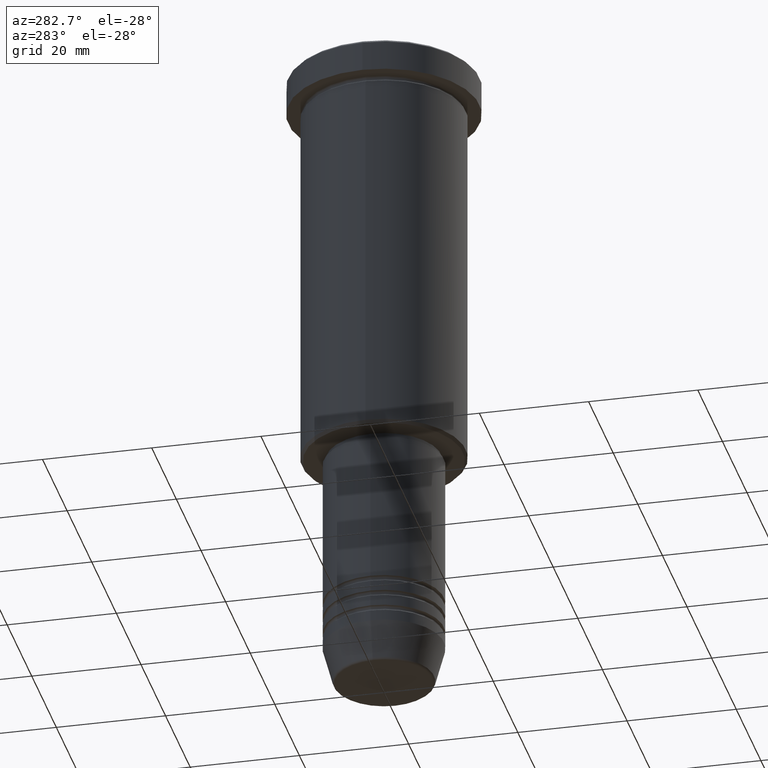
[diagram: clean part render]
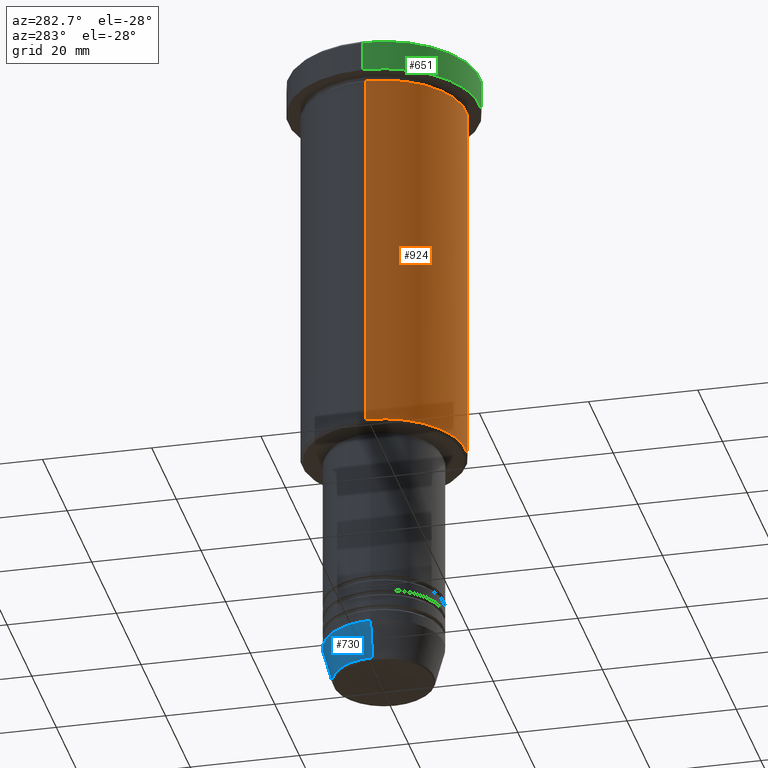
[diagram: same view with three faces highlighted in distinct colors, each labeled with its STEP entity id]
A machine part, auxiliary view with three faces highlighted in distinct colors.
Their STEP definitions:

[orange] entity #924 — the highlighted cylindrical surface (partial cylindrical patch) has radius 15 mm, axis along (-0, -0, 1).
#26 = DIRECTION ( 'NONE',  ( 1.000000000000000000, 0.000000000000000000, 0.000000000000000000 ) ) ;
#30 = EDGE_LOOP ( 'NONE', ( #235, #862, #756, #600 ) ) ;
#87 = LINE ( 'NONE', #244, #726 ) ;
#121 = FACE_OUTER_BOUND ( 'NONE', #30, .T. ) ;
#131 = CARTESIAN_POINT ( 'NONE',  ( 0.000000000000000000, 0.000000000000000000, 0.000000000000000000 ) ) ;
#159 = DIRECTION ( 'NONE',  ( 1.000000000000000000, 0.000000000000000000, 0.000000000000000000 ) ) ;
#175 = EDGE_CURVE ( 'NONE', #380, #1034, #87, .T. ) ;
#207 = CARTESIAN_POINT ( 'NONE',  ( -15.00000000000000000, 1.836970198721029589E-15, -75.49999999999997158 ) ) ;
#235 = ORIENTED_EDGE ( 'NONE', *, *, #175, .F. ) ;
#244 = CARTESIAN_POINT ( 'NONE',  ( -15.00000000000000000, 1.836970198721029589E-15, 0.000000000000000000 ) ) ;
#317 = DIRECTION ( 'NONE',  ( -0.000000000000000000, -0.000000000000000000, 1.000000000000000000 ) ) ;
#327 = CARTESIAN_POINT ( 'NONE',  ( 15.00000000000000000, 0.000000000000000000, 0.000000000000000000 ) ) ;
#337 = CARTESIAN_POINT ( 'NONE',  ( -15.00000000000000000, 1.836970198721029589E-15, -6.999999999999995559 ) ) ;
#341 = AXIS2_PLACEMENT_3D ( 'NONE', #644, #1128, #159 ) ;
#380 = VERTEX_POINT ( 'NONE', #207 ) ;
#420 = EDGE_CURVE ( 'NONE', #380, #1112, #786, .T. ) ;
#481 = CARTESIAN_POINT ( 'NONE',  ( 15.00000000000000000, 0.000000000000000000, -6.999999999999995559 ) ) ;
#504 = EDGE_CURVE ( 'NONE', #1112, #686, #774, .T. ) ;
#533 = AXIS2_PLACEMENT_3D ( 'NONE', #131, #575, #26 ) ;
#564 = CYLINDRICAL_SURFACE ( 'NONE', #533, 15.00000000000000000 ) ;
#575 = DIRECTION ( 'NONE',  ( -0.000000000000000000, -0.000000000000000000, 1.000000000000000000 ) ) ;
#600 = ORIENTED_EDGE ( 'NONE', *, *, #851, .F. ) ;
#620 = CIRCLE ( 'NONE', #341, 15.00000000000000000 ) ;
#644 = CARTESIAN_POINT ( 'NONE',  ( 0.000000000000000000, 0.000000000000000000, -6.999999999999995559 ) ) ;
#686 = VERTEX_POINT ( 'NONE', #481 ) ;
#726 = VECTOR ( 'NONE', #953, 1000.000000000000000 ) ;
#756 = ORIENTED_EDGE ( 'NONE', *, *, #504, .T. ) ;
#762 = AXIS2_PLACEMENT_3D ( 'NONE', #958, #982, #885 ) ;
#774 = LINE ( 'NONE', #327, #952 ) ;
#786 = CIRCLE ( 'NONE', #762, 15.00000000000000000 ) ;
#816 = CARTESIAN_POINT ( 'NONE',  ( 15.00000000000000000, 0.000000000000000000, -75.49999999999997158 ) ) ;
#851 = EDGE_CURVE ( 'NONE', #1034, #686, #620, .T. ) ;
#862 = ORIENTED_EDGE ( 'NONE', *, *, #420, .T. ) ;
#885 = DIRECTION ( 'NONE',  ( -1.000000000000000000, 0.000000000000000000, 0.000000000000000000 ) ) ;
#924 = ADVANCED_FACE ( 'NONE', ( #121 ), #564, .T. ) ;
#952 = VECTOR ( 'NONE', #317, 1000.000000000000000 ) ;
#953 = DIRECTION ( 'NONE',  ( -0.000000000000000000, -0.000000000000000000, 1.000000000000000000 ) ) ;
#958 = CARTESIAN_POINT ( 'NONE',  ( 0.000000000000000000, 0.000000000000000000, -75.49999999999997158 ) ) ;
#982 = DIRECTION ( 'NONE',  ( -0.000000000000000000, -0.000000000000000000, 1.000000000000000000 ) ) ;
#1034 = VERTEX_POINT ( 'NONE', #337 ) ;
#1112 = VERTEX_POINT ( 'NONE', #816 ) ;
#1128 = DIRECTION ( 'NONE',  ( -0.000000000000000000, -0.000000000000000000, 1.000000000000000000 ) ) ;

[blue] entity #730 — the highlighted conical surface has half-angle 15 deg.
#49 = DIRECTION ( 'NONE',  ( 1.000000000000000000, 0.000000000000000000, 0.000000000000000000 ) ) ;
#77 = VECTOR ( 'NONE', #933, 1000.000000000000000 ) ;
#140 = DIRECTION ( 'NONE',  ( -0.000000000000000000, -0.000000000000000000, 1.000000000000000000 ) ) ;
#167 = ORIENTED_EDGE ( 'NONE', *, *, #737, .F. ) ;
#202 = FACE_OUTER_BOUND ( 'NONE', #778, .T. ) ;
#206 = ORIENTED_EDGE ( 'NONE', *, *, #344, .F. ) ;
#224 = VERTEX_POINT ( 'NONE', #902 ) ;
#279 = CARTESIAN_POINT ( 'NONE',  ( 11.00000000000000000, 0.000000000000000000, -113.9999999999999858 ) ) ;
#344 = EDGE_CURVE ( 'NONE', #1160, #847, #447, .T. ) ;
#408 = CARTESIAN_POINT ( 'NONE',  ( -11.00000000000000000, 1.347111479062088405E-15, -113.9999999999999858 ) ) ;
#435 = CARTESIAN_POINT ( 'NONE',  ( -9.223655072137191269, 1.238341722557647202E-15, -120.6294095225512280 ) ) ;
#447 = CIRCLE ( 'NONE', #1142, 11.00000000000000000 ) ;
#470 = DIRECTION ( 'NONE',  ( 0.2588190451025213501, 0.000000000000000000, 0.9659258262890680902 ) ) ;
#490 = CARTESIAN_POINT ( 'NONE',  ( 0.000000000000000000, 0.000000000000000000, -120.6294095225512280 ) ) ;
#514 = CIRCLE ( 'NONE', #731, 9.223655072137191269 ) ;
#552 = VECTOR ( 'NONE', #470, 1000.000000000000000 ) ;
#555 = CARTESIAN_POINT ( 'NONE',  ( 11.00000000000000000, 0.000000000000000000, -113.9999999999999858 ) ) ;
#634 = EDGE_CURVE ( 'NONE', #1154, #847, #690, .T. ) ;
#643 = ORIENTED_EDGE ( 'NONE', *, *, #634, .T. ) ;
#690 = LINE ( 'NONE', #408, #77 ) ;
#730 = ADVANCED_FACE ( 'NONE', ( #202 ), #1145, .T. ) ;
#731 = AXIS2_PLACEMENT_3D ( 'NONE', #490, #140, #49 ) ;
#737 = EDGE_CURVE ( 'NONE', #224, #1160, #1007, .T. ) ;
#748 = CARTESIAN_POINT ( 'NONE',  ( 0.000000000000000000, 0.000000000000000000, -113.9999999999999858 ) ) ;
#778 = EDGE_LOOP ( 'NONE', ( #1172, #643, #206, #167 ) ) ;
#808 = DIRECTION ( 'NONE',  ( -0.000000000000000000, -0.000000000000000000, 1.000000000000000000 ) ) ;
#828 = DIRECTION ( 'NONE',  ( 1.000000000000000000, 0.000000000000000000, 0.000000000000000000 ) ) ;
#847 = VERTEX_POINT ( 'NONE', #1093 ) ;
#878 = AXIS2_PLACEMENT_3D ( 'NONE', #748, #1107, #828 ) ;
#902 = CARTESIAN_POINT ( 'NONE',  ( 9.223655072137191269, 0.000000000000000000, -120.6294095225512280 ) ) ;
#933 = DIRECTION ( 'NONE',  ( -0.2588190451025213501, 3.169619151431772337E-17, 0.9659258262890680902 ) ) ;
#972 = CARTESIAN_POINT ( 'NONE',  ( 0.000000000000000000, 0.000000000000000000, -113.9999999999999858 ) ) ;
#1007 = LINE ( 'NONE', #555, #552 ) ;
#1086 = EDGE_CURVE ( 'NONE', #224, #1154, #514, .T. ) ;
#1093 = CARTESIAN_POINT ( 'NONE',  ( -11.00000000000000000, 1.347111479062088405E-15, -113.9999999999999858 ) ) ;
#1107 = DIRECTION ( 'NONE',  ( -0.000000000000000000, -0.000000000000000000, 1.000000000000000000 ) ) ;
#1142 = AXIS2_PLACEMENT_3D ( 'NONE', #972, #808, #1171 ) ;
#1145 = CONICAL_SURFACE ( 'NONE', #878, 11.00000000000000000, 0.2617993877991500740 ) ;
#1154 = VERTEX_POINT ( 'NONE', #435 ) ;
#1160 = VERTEX_POINT ( 'NONE', #279 ) ;
#1171 = DIRECTION ( 'NONE',  ( 1.000000000000000000, 0.000000000000000000, 0.000000000000000000 ) ) ;
#1172 = ORIENTED_EDGE ( 'NONE', *, *, #1086, .T. ) ;

[green] entity #651 — the highlighted cylindrical surface (partial cylindrical patch) has radius 17.5 mm, axis along (-0, -0, 1).
#79 = ORIENTED_EDGE ( 'NONE', *, *, #1035, .T. ) ;
#166 = CARTESIAN_POINT ( 'NONE',  ( 17.50000000000000000, 0.000000000000000000, -0.4999999999999864553 ) ) ;
#197 = AXIS2_PLACEMENT_3D ( 'NONE', #1157, #250, #699 ) ;
#220 = FACE_OUTER_BOUND ( 'NONE', #1108, .T. ) ;
#221 = CARTESIAN_POINT ( 'NONE',  ( 17.50000000000000000, 0.000000000000000000, 0.000000000000000000 ) ) ;
#238 = DIRECTION ( 'NONE',  ( 1.000000000000000000, 0.000000000000000000, 0.000000000000000000 ) ) ;
#242 = AXIS2_PLACEMENT_3D ( 'NONE', #611, #791, #238 ) ;
#250 = DIRECTION ( 'NONE',  ( -0.000000000000000000, -0.000000000000000000, 1.000000000000000000 ) ) ;
#263 = DIRECTION ( 'NONE',  ( 1.000000000000000000, 0.000000000000000000, 0.000000000000000000 ) ) ;
#315 = VERTEX_POINT ( 'NONE', #166 ) ;
#333 = CARTESIAN_POINT ( 'NONE',  ( -17.50000000000000000, 2.143131898507868248E-15, -5.999999999999995559 ) ) ;
#407 = ORIENTED_EDGE ( 'NONE', *, *, #1005, .T. ) ;
#417 = CYLINDRICAL_SURFACE ( 'NONE', #837, 17.50000000000000000 ) ;
#422 = ORIENTED_EDGE ( 'NONE', *, *, #830, .T. ) ;
#440 = LINE ( 'NONE', #1178, #900 ) ;
#454 = VERTEX_POINT ( 'NONE', #1150 ) ;
#569 = VECTOR ( 'NONE', #683, 1000.000000000000000 ) ;
#611 = CARTESIAN_POINT ( 'NONE',  ( 0.000000000000000000, 0.000000000000000000, -0.4999999999999864553 ) ) ;
#651 = ADVANCED_FACE ( 'NONE', ( #220 ), #417, .T. ) ;
#660 = CARTESIAN_POINT ( 'NONE',  ( -17.50000000000000000, 2.143131898507868248E-15, -0.4999999999999864553 ) ) ;
#668 = CIRCLE ( 'NONE', #197, 17.50000000000000000 ) ;
#683 = DIRECTION ( 'NONE',  ( -0.000000000000000000, -0.000000000000000000, 1.000000000000000000 ) ) ;
#699 = DIRECTION ( 'NONE',  ( 1.000000000000000000, 0.000000000000000000, 0.000000000000000000 ) ) ;
#727 = DIRECTION ( 'NONE',  ( -0.000000000000000000, -0.000000000000000000, 1.000000000000000000 ) ) ;
#791 = DIRECTION ( 'NONE',  ( 0.000000000000000000, 0.000000000000000000, -1.000000000000000000 ) ) ;
#825 = ORIENTED_EDGE ( 'NONE', *, *, #1138, .F. ) ;
#830 = EDGE_CURVE ( 'NONE', #454, #315, #1130, .T. ) ;
#837 = AXIS2_PLACEMENT_3D ( 'NONE', #1058, #1073, #263 ) ;
#876 = VERTEX_POINT ( 'NONE', #660 ) ;
#900 = VECTOR ( 'NONE', #727, 1000.000000000000000 ) ;
#1005 = EDGE_CURVE ( 'NONE', #1057, #454, #668, .T. ) ;
#1035 = EDGE_CURVE ( 'NONE', #315, #876, #1169, .T. ) ;
#1057 = VERTEX_POINT ( 'NONE', #333 ) ;
#1058 = CARTESIAN_POINT ( 'NONE',  ( 0.000000000000000000, 0.000000000000000000, 0.000000000000000000 ) ) ;
#1073 = DIRECTION ( 'NONE',  ( -0.000000000000000000, -0.000000000000000000, 1.000000000000000000 ) ) ;
#1108 = EDGE_LOOP ( 'NONE', ( #825, #407, #422, #79 ) ) ;
#1130 = LINE ( 'NONE', #221, #569 ) ;
#1138 = EDGE_CURVE ( 'NONE', #1057, #876, #440, .T. ) ;
#1150 = CARTESIAN_POINT ( 'NONE',  ( 17.50000000000000000, 0.000000000000000000, -5.999999999999995559 ) ) ;
#1157 = CARTESIAN_POINT ( 'NONE',  ( 0.000000000000000000, 0.000000000000000000, -5.999999999999995559 ) ) ;
#1169 = CIRCLE ( 'NONE', #242, 17.50000000000000000 ) ;
#1178 = CARTESIAN_POINT ( 'NONE',  ( -17.50000000000000000, 2.143131898507868248E-15, 0.000000000000000000 ) ) ;